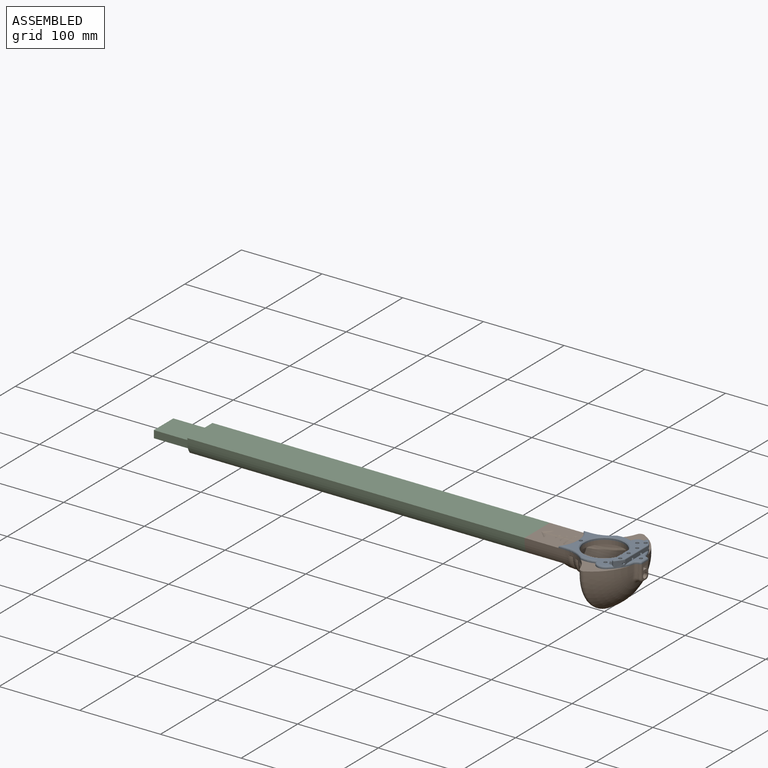
[diagram: assembled view]
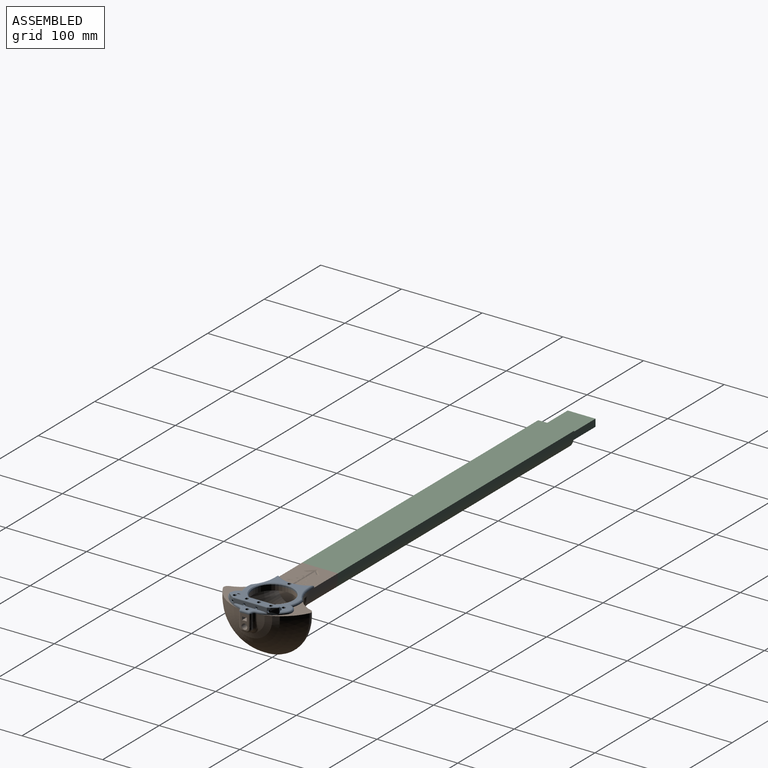
[diagram: assembled view, second angle]
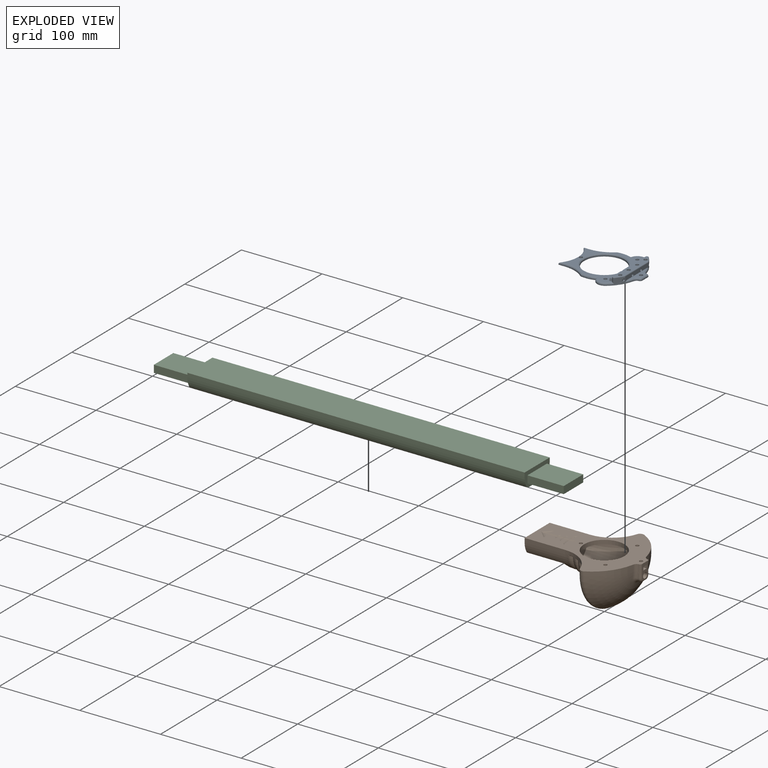
[diagram: exploded view]
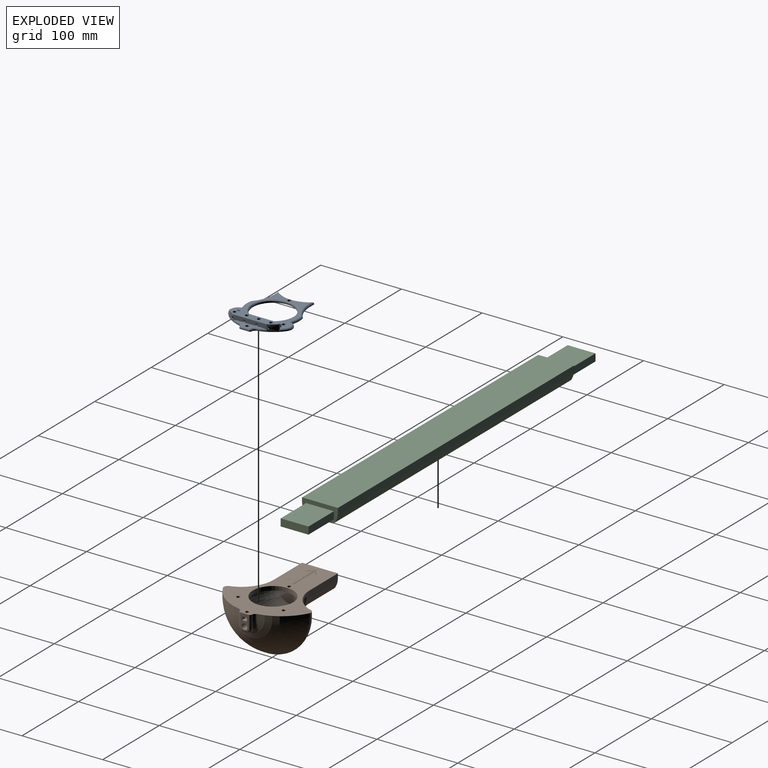
[diagram: exploded view, second angle]
ASSEMBLY  parts=3 mates=6
PART A: 123 faces, bbox 79.8x92.9x10.7 mm
  f0: plane 91.7x76.9mm, normal (0,0,-1), area 2674.4mm2, adj f10,f11,f12,f13,f14,f15,f16,f17
  f1: plane 31.9x8.03mm, normal (0,0,1), area 118.9mm2, adj f3,f5,f23,f48,f50,f52,f53,f54
  f2: torus R=43.5mm, axis (0,0,1), area 24.8mm2, adj f11,f27,f45,f115
  f3: torus R=43.5mm, axis (0,0,1), area 24.8mm2, adj f1,f11,f48,f68
  f4: torus R=43.5mm, axis (0,0,1), area 24.8mm2, adj f21,f27,f51,f116
  f5: torus R=43.5mm, axis (0,0,1), area 24.8mm2, adj f1,f21,f54,f68
  f6: plane 10.98x2.91mm, normal (0,0,1), area 31mm2, adj f33,f35,f55,f57,f59,f60
  f7: plane 10.98x2.91mm, normal (0,0,1), area 31mm2, adj f33,f35,f58,f60,f62,f63
  f8: plane 10.98x2.91mm, normal (0,0,1), area 31mm2, adj f33,f35,f61,f63,f65,f66
  f9: plane 4.45x2.91mm, normal (0,0,1), area 12.5mm2, adj f33,f34,f35,f64,f66
  f10: plane 10x1mm, normal (0,1,0), area 10mm2, adj f0,f28,f29,f52
  f11: cylinder r=45.5mm len=25.19mm, axis (0,0,-1), area 103.5mm2, adj f0,f2,f3,f12,f30,f68,f82,f115
  f12: cylinder r=10.25mm len=16.01mm, axis (0,0,-1), area 19.9mm2, adj f0,f11,f13,f45
  f13: cylinder r=33mm len=17.91mm, axis (0,0,-1), area 18.2mm2, adj f0,f12,f14,f43
  f14: cylinder r=40mm len=26.58mm, axis (0,0,-1), area 29.1mm2, adj f0,f13,f15,f41
  f15: plane 8x1mm, normal (-1,0,0), area 8mm2, adj f0,f14,f16,f42
  f16: cylinder r=34.24mm len=44.45mm, axis (0,0,-1), area 48.4mm2, adj f0,f15,f17,f44
  f17: plane 8x1mm, normal (1,0,0), area 8mm2, adj f0,f16,f18,f46
  f18: cylinder r=40mm len=26.58mm, axis (0,0,-1), area 29.1mm2, adj f0,f17,f19,f47
  f19: cylinder r=33mm len=17.91mm, axis (0,0,-1), area 18.2mm2, adj f0,f18,f20,f49
  f20: cylinder r=10.25mm len=16.01mm, axis (0,0,-1), area 19.9mm2, adj f0,f19,f21,f51
  f21: cylinder r=45.5mm len=25.19mm, axis (0,0,-1), area 103.5mm2, adj f0,f4,f5,f20,f31,f68,f76,f116
  f22: cylinder r=2.12mm len=4.25mm, axis (0,0,-1), area 40.1mm2, adj f0,f27
  f23: cylinder r=2.12mm len=4.25mm, axis (0,0,-1), area 40.1mm2, adj f0,f1
  f24: cylinder r=2.12mm len=4.25mm, axis (0,0,-1), area 40.1mm2, adj f0,f27,f44
  f25: cylinder r=2.12mm len=4.25mm, axis (0,0,-1), area 40.1mm2, adj f0,f27
  f26: cylinder r=25mm len=50mm, axis (0,0,-1), area 314.2mm2, adj f0,f67
  f27: plane 72.9x68.28mm, normal (0,0,1), area 1227.5mm2, adj f2,f4,f22,f24,f25,f32,f33,f34
  f28: cylinder r=2.5mm len=2.48mm, axis (0,0,1), area 3.6mm2, adj f0,f10,f30,f50
  f29: cylinder r=2.5mm len=2.48mm, axis (0,0,-1), area 3.6mm2, adj f0,f10,f31,f53
  f30: cylinder r=5mm len=4.22mm, axis (0,0,1), area 6mm2, adj f0,f11,f28,f48
  f31: cylinder r=5mm len=4.22mm, axis (0,0,1), area 6mm2, adj f0,f21,f29,f54
  f32: plane 3.94x3mm, normal (-0.98,0,0.17), area 10.4mm2, adj f27,f33,f35,f36
  f33: plane 58.98x3.04mm, normal (0,-0.98,0.17), area 167.4mm2, adj f6,f7,f8,f9,f27,f32,f34,f36
  f34: plane 3.94x3mm, normal (0.98,0,0.17), area 10.4mm2, adj f9,f27,f33,f35
  f35: plane 58.94x3mm, normal (0,0.98,0.17), area 141.1mm2, adj f6,f7,f8,f9,f27,f32,f34,f36
  f36: plane 4.45x2.91mm, normal (0,0,1), area 12.5mm2, adj f32,f33,f35,f56,f57
  f37: cylinder r=1.25mm len=2.4mm, axis (0,-0.98,0.17), area 6.5mm2, adj f33,f64,f65,f66
  f38: cylinder r=1.25mm len=2.4mm, axis (0,-0.98,0.17), area 6.5mm2, adj f33,f61,f62,f63
  f39: cylinder r=1.25mm len=2.4mm, axis (0,-0.98,0.17), area 6.5mm2, adj f33,f58,f59,f60
  f40: cylinder r=1.25mm len=2.4mm, axis (0,-0.98,0.17), area 6.5mm2, adj f33,f55,f56,f57
  f41: torus R=42mm, axis (0,0,1), area 92.1mm2, adj f14,f27,f42,f43
  f42: cylinder r=2mm len=8mm, axis (0,1,0), area 18.8mm2, adj f15,f27,f41,f44
  f43: torus R=31mm, axis (0,0,1), area 59.1mm2, adj f13,f27,f41,f45
  f44: torus R=36.24mm, axis (0,0,1), area 142.4mm2, adj f16,f24,f27,f42,f46
  f45: torus R=8.25mm, axis (0,0,1), area 62mm2, adj f2,f12,f27,f43
  f46: cylinder r=2mm len=8mm, axis (0,-1,0), area 18.8mm2, adj f17,f27,f44,f47
  f47: torus R=42mm, axis (0,0,1), area 92.1mm2, adj f18,f27,f46,f49
  f48: torus R=7mm, axis (0,0,1), area 21.5mm2, adj f1,f3,f30,f50
  f49: torus R=31mm, axis (0,0,1), area 59.1mm2, adj f19,f27,f47,f51
  f50: torus R=0.5mm, axis (0,0,1), area 8mm2, adj f1,f28,f48,f52
  f51: torus R=8.25mm, axis (0,0,1), area 62mm2, adj f4,f20,f27,f49
  f52: cylinder r=2mm len=10mm, axis (1,0,0), area 31.4mm2, adj f1,f10,f50,f53
  f53: torus R=0.5mm, axis (0,0,1), area 8mm2, adj f1,f29,f52,f54
  f54: torus R=7mm, axis (0,0,1), area 21.5mm2, adj f1,f5,f31,f53
  f55: bspline ~3.1x1.08mm, area 3.1mm2, adj f6,f33,f40,f57
  f56: bspline ~3.1x1.08mm, area 3.1mm2, adj f33,f36,f40,f57
  f57: bspline ~4.5x2.53mm, area 7.3mm2, adj f6,f35,f36,f40,f55,f56
  f58: bspline ~3.1x1.08mm, area 3.1mm2, adj f7,f33,f39,f60
  f59: bspline ~3.1x1.08mm, area 3.1mm2, adj f6,f33,f39,f60
  f60: bspline ~4.5x2.53mm, area 7.3mm2, adj f6,f7,f35,f39,f58,f59
  f61: bspline ~3.1x1.08mm, area 3.1mm2, adj f8,f33,f38,f63
  f62: bspline ~3.1x1.08mm, area 3.1mm2, adj f7,f33,f38,f63
  f63: bspline ~4.5x2.53mm, area 7.3mm2, adj f7,f8,f35,f38,f61,f62
  f64: bspline ~3.1x1.08mm, area 3.1mm2, adj f9,f33,f37,f66
  f65: bspline ~3.1x1.08mm, area 3.1mm2, adj f8,f33,f37,f66
  f66: bspline ~4.5x2.53mm, area 7.3mm2, adj f8,f9,f35,f37,f64,f65
  f67: cone r=25mm half-angle=45deg, axis (0,0,1), area 226.6mm2, adj f26,f27
  f68: plane 42.83x8.24mm, normal (0,1,0), area 197.7mm2, adj f1,f3,f5,f11,f21,f77,f79,f120
  f69: plane 57.89x5mm, normal (0,-1,0), area 261.2mm2, adj f35,f75,f78,f80,f81,f115,f116,f119
  f70: cylinder r=2.12mm len=5mm, axis (0,0,-1), area 55.9mm2, adj f74,f81,f82,f85,f86
  f71: cylinder r=2.12mm len=5mm, axis (0,0,-1), area 55.9mm2, adj f74,f79,f80,f93,f94
  f72: cylinder r=2.12mm len=5mm, axis (0,0,-1), area 55.9mm2, adj f74,f77,f78,f101,f102
  f73: cylinder r=2.12mm len=5mm, axis (0,0,-1), area 55.9mm2, adj f74,f75,f76,f109,f110
  f74: plane 59.89x8mm, normal (0,0,1), area 366mm2, adj f70,f71,f72,f73,f117,f118,f119,f120
  f75: cylinder r=1.5mm len=3.41mm, axis (0,-1,0), area 27.3mm2, adj f69,f73,f107,f109,f110
  f76: cylinder r=1.5mm len=3.39mm, axis (0,-1,0), area 17.2mm2, adj f21,f73,f108,f109,f110
  f77: cylinder r=1.5mm len=3.5mm, axis (0,-1,0), area 26.1mm2, adj f68,f72,f99,f101,f102
  f78: cylinder r=1.5mm len=3.41mm, axis (0,-1,0), area 27.3mm2, adj f69,f72,f100,f101,f102
  f79: cylinder r=1.5mm len=3.5mm, axis (0,-1,0), area 26.1mm2, adj f68,f71,f91,f93,f94
  f80: cylinder r=1.5mm len=3.41mm, axis (0,-1,0), area 27.3mm2, adj f69,f71,f92,f93,f94
  f81: cylinder r=1.5mm len=3.41mm, axis (0,-1,0), area 27.3mm2, adj f69,f70,f83,f85,f86
  f82: cylinder r=1.5mm len=3.39mm, axis (0,-1,0), area 17.2mm2, adj f11,f70,f84,f85,f86
  f83: plane 4x3.37mm, normal (0,1,0), area 11.4mm2, adj f0,f81,f85,f86,f89,f90
  f84: plane 4x3.37mm, normal (0,-1,0), area 11.4mm2, adj f0,f82,f85,f86,f87,f88
  f85: plane 5.84x1.95mm, normal (0,0,-1), area 4.9mm2, adj f70,f81,f82,f83,f84,f88,f89
  f86: plane 5.84x1.95mm, normal (0,0,-1), area 4.9mm2, adj f70,f81,f82,f83,f84,f87,f90
  f87: plane 4x2.92mm, normal (-0.87,-0.5,0), area 13.5mm2, adj f0,f84,f86,f90
  f88: plane 4x2.92mm, normal (0.87,-0.5,0), area 13.5mm2, adj f0,f84,f85,f89
  f89: plane 4x2.92mm, normal (0.87,0.5,0), area 13.5mm2, adj f0,f83,f85,f88
  f90: plane 4x2.92mm, normal (-0.87,0.5,0), area 13.5mm2, adj f0,f83,f86,f87
  f91: plane 4x3.37mm, normal (0,-1,0), area 11.4mm2, adj f0,f79,f93,f94,f95,f96
  f92: plane 4x3.37mm, normal (0,1,0), area 11.4mm2, adj f0,f80,f93,f94,f97,f98
  f93: plane 5.84x1.95mm, normal (0,0,-1), area 4.9mm2, adj f71,f79,f80,f91,f92,f96,f97
  f94: plane 5.84x1.95mm, normal (0,0,-1), area 4.9mm2, adj f71,f79,f80,f91,f92,f95,f98
  f95: plane 4x2.92mm, normal (-0.87,-0.5,0), area 13.5mm2, adj f0,f91,f94,f98
  f96: plane 4x2.92mm, normal (0.87,-0.5,0), area 13.5mm2, adj f0,f91,f93,f97
  f97: plane 4x2.92mm, normal (0.87,0.5,0), area 13.5mm2, adj f0,f92,f93,f96
  f98: plane 4x2.92mm, normal (-0.87,0.5,0), area 13.5mm2, adj f0,f92,f94,f95
  f99: plane 4x3.37mm, normal (0,-1,0), area 11.4mm2, adj f0,f77,f101,f102,f103,f104
  f100: plane 4x3.37mm, normal (0,1,0), area 11.4mm2, adj f0,f78,f101,f102,f105,f106
  f101: plane 5.84x1.95mm, normal (0,0,-1), area 4.9mm2, adj f72,f77,f78,f99,f100,f104,f105
  f102: plane 5.84x1.95mm, normal (0,0,-1), area 4.9mm2, adj f72,f77,f78,f99,f100,f103,f106
  f103: plane 4x2.92mm, normal (-0.87,-0.5,0), area 13.5mm2, adj f0,f99,f102,f106
  f104: plane 4x2.92mm, normal (0.87,-0.5,0), area 13.5mm2, adj f0,f99,f101,f105
  f105: plane 4x2.92mm, normal (0.87,0.5,0), area 13.5mm2, adj f0,f100,f101,f104
  f106: plane 4x2.92mm, normal (-0.87,0.5,0), area 13.5mm2, adj f0,f100,f102,f103
  f107: plane 4x3.37mm, normal (0,1,0), area 11.4mm2, adj f0,f75,f109,f110,f113,f114
  f108: plane 4x3.37mm, normal (0,-1,0), area 11.4mm2, adj f0,f76,f109,f110,f111,f112
  f109: plane 5.84x1.95mm, normal (0,0,-1), area 4.9mm2, adj f73,f75,f76,f107,f108,f112,f113
  f110: plane 5.84x1.95mm, normal (0,0,-1), area 4.9mm2, adj f73,f75,f76,f107,f108,f111,f114
  f111: plane 4x2.92mm, normal (-0.87,-0.5,0), area 13.5mm2, adj f0,f108,f110,f114
  f112: plane 4x2.92mm, normal (0.87,-0.5,0), area 13.5mm2, adj f0,f108,f109,f113
  f113: plane 4x2.92mm, normal (0.87,0.5,0), area 13.5mm2, adj f0,f107,f109,f112
  f114: plane 4x2.92mm, normal (-0.87,0.5,0), area 13.5mm2, adj f0,f107,f110,f111
  f115: cylinder r=2mm len=7mm, axis (0,0,-1), area 27.3mm2, adj f2,f11,f27,f69,f121
  f116: cylinder r=2mm len=7mm, axis (0,0,-1), area 27.3mm2, adj f4,f21,f27,f69,f117
  f117: torus R=1mm, axis (0,0,1), area 6.2mm2, adj f74,f116,f118,f119
  f118: torus R=44.5mm, axis (0,0,1), area 17.8mm2, adj f21,f74,f117,f120
  f119: cylinder r=1mm len=57.89mm, axis (-1,0,0), area 90.9mm2, adj f69,f74,f117,f121
  f120: cylinder r=1mm len=41.59mm, axis (1,0,0), area 64.9mm2, adj f68,f74,f118,f122
  f121: torus R=1mm, axis (0,0,1), area 6.2mm2, adj f74,f115,f119,f122
  f122: torus R=44.5mm, axis (0,0,1), area 17.8mm2, adj f11,f74,f120,f121
PART B: 161 faces, bbox 136.9x137.9x74.5 mm
  f0: plane 93.59x73.2mm, normal (0,0,1), area 2257.4mm2, adj f22,f26,f27,f28,f103,f111,f112,f113
  f1: cylinder r=2.12mm len=4.25mm, axis (0,0,-1), area 26.7mm2, adj f21,f125
  f2: cylinder r=2.12mm len=4.25mm, axis (0,0,-1), area 26.7mm2, adj f21,f118
  f3: cylinder r=2.12mm len=4.25mm, axis (0,0,-1), area 26.7mm2, adj f21,f117
  f4: cylinder r=3.5mm len=8.7mm, axis (0,1,0), area 191.2mm2, adj f74,f102
  f5: cylinder r=60mm len=41.99mm, axis (0,0,-1), area 272.6mm2, adj f6,f21,f41,f86
  f6: sphere r=60mm, area 5793.4mm2, adj f5,f24,f40,f81,f82,f83,f84,f85
  f7: plane 41.59x29.33mm, normal (0,0,1), area 901mm2, adj f9,f35,f42,f43,f71,f72,f73
  f8: plane 45x34.45mm, normal (0,0,-1), area 1491.3mm2, adj f9,f10,f11,f36,f71,f72,f73
  f9: plane 44.45x19.05mm, normal (0,-1,0), area 488.4mm2, adj f7,f8,f10,f11,f18,f19,f20,f21
  f10: plane 45x9.05mm, normal (-1,0,0), area 407.3mm2, adj f8,f9,f20,f36
  f11: plane 45x9.05mm, normal (1,0,0), area 407.3mm2, adj f8,f9,f20,f36
  f12: plane 3.28x1.87mm, normal (0,0,1), area 3.1mm2, adj f44,f47,f57,f60
  f13: plane 2.58x2.1mm, normal (0,0,1), area 2.9mm2, adj f31,f45,f48,f66,f69
  f14: plane 2.65x2.55mm, normal (0,0,1), area 3.1mm2, adj f33,f46,f49,f54,f63
  f15: plane 2.65x2.55mm, normal (0,0,1), area 3.1mm2, adj f33,f46,f52,f54,f63
  f16: plane 2.58x2.1mm, normal (0,0,1), area 2.9mm2, adj f31,f45,f51,f66,f69
  f17: plane 3.28x1.87mm, normal (0,0,1), area 3.1mm2, adj f44,f50,f57,f60
  f18: plane 50x5mm, normal (1,0,0), area 250mm2, adj f9,f21,f25,f37
  f19: plane 50x5mm, normal (-1,0,0), area 250mm2, adj f9,f21,f23,f38
  f20: plane 45x34.45mm, normal (0,0,1), area 1550.2mm2, adj f9,f10,f11,f36
  f21: plane 133.7x108.14mm, normal (0,0,-1), area 5604.5mm2, adj f1,f2,f3,f5,f9,f18,f19,f23
  f22: plane 34.45x17.23mm, normal (0,1,0), area 466.1mm2, adj f0,f28
  f23: cylinder r=40mm len=38.25mm, axis (0,0,-1), area 230.6mm2, adj f19,f21,f29,f30,f32,f34,f41,f47
  f24: cylinder r=60mm len=41.99mm, axis (0,0,-1), area 272.6mm2, adj f6,f21,f39,f80
  f25: cylinder r=40mm len=38.25mm, axis (0,0,-1), area 230.6mm2, adj f18,f21,f29,f30,f32,f34,f39,f50
  f26: cylinder r=25mm len=50mm, axis (0,0,-1), area 785.4mm2, adj f0,f21
  f27: sphere r=55mm, area 4172.4mm2, adj f0,f96,f97,f98,f99,f100,f101,f103
  f28: torus R=62.23mm, axis (0,1,0), area 4309.1mm2, adj f0,f22,f103
  f29: torus R=62.23mm, axis (0,1,0), area 296.4mm2, adj f23,f25,f35,f37,f38,f57
  f30: torus R=62.23mm, axis (0,1,0), area 125.9mm2, adj f23,f25,f60,f69
  f31: plane 50.56x25.28mm, normal (0,-1,0), area 35.2mm2, adj f13,f16,f45,f66
  f32: torus R=62.23mm, axis (0,1,0), area 137.1mm2, adj f23,f25,f63,f66
  f33: plane 61.17x30.59mm, normal (0,-1,0), area 67.2mm2, adj f14,f15,f46,f54
  f34: torus R=62.23mm, axis (0,1,0), area 2544.8mm2, adj f23,f25,f40,f54
  f35: revolved ~37.82x21.22mm, area 645.9mm2, adj f7,f29,f42,f43
  f36: plane 34.45x9.05mm, normal (0,-1,0), area 311.8mm2, adj f8,f10,f11,f20
  f37: cylinder r=22.23mm len=50mm, axis (0,1,0), area 614.7mm2, adj f9,f18,f29,f42
  f38: cylinder r=22.23mm len=50mm, axis (0,1,0), area 614.7mm2, adj f9,f19,f29,f43
  f39: cylinder r=5mm len=7.04mm, axis (0,0,1), area 43.6mm2, adj f21,f24,f25,f40
  f40: torus R=49.07mm, axis (0,1,0), area 1453.9mm2, adj f6,f34,f39,f41
  f41: cylinder r=5mm len=7.04mm, axis (0,0,1), area 43.6mm2, adj f5,f21,f23,f40
  f42: cylinder r=5mm len=50mm, axis (0,1,0), area 233mm2, adj f7,f9,f35,f37
  f43: cylinder r=5mm len=50mm, axis (0,1,0), area 233mm2, adj f7,f9,f35,f38
  f44: torus R=21.71mm, axis (0,-1,0), area 138.3mm2, adj f12,f17,f57,f60
  f45: torus R=24.83mm, axis (0,-1,0), area 178.2mm2, adj f13,f16,f31,f69
  f46: torus R=29.88mm, axis (0,-1,0), area 182.6mm2, adj f14,f15,f33,f63
  f47: torus R=41mm, axis (0,0,-1), area 9.4mm2, adj f12,f23,f58,f61
  f48: torus R=41mm, axis (0,0,-1), area 7.8mm2, adj f13,f23,f67,f70
  f49: torus R=41mm, axis (0,0,-1), area 9.5mm2, adj f14,f23,f55,f64
  f50: torus R=41mm, axis (0,0,-1), area 9.4mm2, adj f17,f25,f56,f59
  f51: torus R=41mm, axis (0,0,-1), area 7.8mm2, adj f16,f25,f65,f68
  f52: torus R=41mm, axis (0,0,-1), area 9.5mm2, adj f15,f25,f53,f62
  f53: cylinder r=5mm len=2.67mm, axis (0,0,-1), area 1.5mm2, adj f25,f52,f54
  f54: torus R=30.59mm, axis (0,-1,0), area 397.3mm2, adj f14,f15,f33,f34,f53,f55
  f55: cylinder r=5mm len=2.67mm, axis (0,0,-1), area 1.5mm2, adj f23,f49,f54
  f56: bspline ~4.13x3.99mm, area 1.6mm2, adj f25,f50,f57
  f57: torus R=17.48mm, axis (0,-1,0), area 309mm2, adj f12,f17,f29,f44,f56,f58
  f58: bspline ~4.13x2.5mm, area 1.6mm2, adj f23,f47,f57
  f59: bspline ~3.49x2.85mm, area 1.4mm2, adj f25,f50,f60
  f60: torus R=20.46mm, axis (0,-1,0), area 289.2mm2, adj f12,f17,f30,f44,f59,f61
  f61: bspline ~3.49x2.85mm, area 1.4mm2, adj f23,f47,f60
  f62: bspline ~4.2x3.95mm, area 1.4mm2, adj f25,f52,f63
  f63: torus R=25.32mm, axis (0,-1,0), area 365.2mm2, adj f14,f15,f32,f46,f62,f64
  f64: bspline ~4.2x3.95mm, area 1.4mm2, adj f23,f49,f63
  f65: cylinder r=3mm len=1.93mm, axis (0,0,-1), area 1.2mm2, adj f25,f51,f66
  f66: torus R=25.28mm, axis (0,-1,0), area 260.1mm2, adj f13,f16,f31,f32,f65,f67
  f67: cylinder r=3mm len=1.93mm, axis (0,0,-1), area 1.2mm2, adj f23,f48,f66
  f68: bspline ~3.67x3.28mm, area 1.2mm2, adj f25,f51,f69
  f69: torus R=21.99mm, axis (0,-1,0), area 266.8mm2, adj f13,f16,f30,f45,f68,f70
  f70: bspline ~5.87x3.28mm, area 1.2mm2, adj f23,f48,f69
  f71: cylinder r=2.5mm len=5mm, axis (0,0,1), area 78.5mm2, adj f7,f8
  f72: cylinder r=2.5mm len=5mm, axis (0,0,1), area 78.5mm2, adj f7,f8
  f73: cylinder r=2.5mm len=5mm, axis (0,0,1), area 78.5mm2, adj f7,f8
  f74: plane 18.5x10.08mm, normal (0,1,0), area 121.4mm2, adj f4,f21,f87,f88,f89,f90,f91,f92
  f75: plane 1.01x0.17mm, normal (1,0,0), area 0.1mm2, adj f79,f81,f95
  f76: plane 1.01x0.17mm, normal (-1,0,0), area 0.1mm2, adj f78,f85,f89
  f77: plane 5x1.54mm, normal (0,0,1), area 7.5mm2, adj f78,f79,f83,f91
  f78: cylinder r=5mm len=5mm, axis (0,-1,0), area 9mm2, adj f76,f77,f84,f90
  f79: cylinder r=5mm len=5mm, axis (0,1,0), area 9mm2, adj f75,f77,f82,f93
  f80: cylinder r=5mm len=5mm, axis (0,0,-1), area 31.8mm2, adj f21,f24,f81,f92
  f81: torus R=63.79mm, axis (1,0,0), area 70mm2, adj f6,f75,f80,f82,f94
  f82: bspline ~11.28x9.5mm, area 67.6mm2, adj f6,f79,f81,f83
  f83: torus R=61.51mm, axis (0,0,-1), area 29.7mm2, adj f6,f77,f82,f84
  f84: bspline ~11.28x10.29mm, area 67.6mm2, adj f6,f78,f83,f85
  f85: torus R=63.79mm, axis (1,0,0), area 70mm2, adj f6,f76,f84,f86,f88
  f86: cylinder r=5mm len=5mm, axis (0,0,-1), area 31.8mm2, adj f5,f21,f85,f87
  f87: cylinder r=2.5mm len=5mm, axis (0,0,-1), area 18.3mm2, adj f21,f74,f86,f88
  f88: bspline ~17.54x2.87mm, area 37.5mm2, adj f74,f85,f87,f89
  f89: cylinder r=2.5mm len=2.5mm, axis (0,0,-1), area 4mm2, adj f74,f76,f88,f90
  f90: torus R=2.5mm, axis (0,-1,0), area 25.2mm2, adj f74,f78,f89,f91
  f91: cylinder r=2.5mm len=5mm, axis (-1,0,0), area 19.6mm2, adj f74,f77,f90,f93
  f92: cylinder r=2.5mm len=5mm, axis (0,0,-1), area 18.3mm2, adj f21,f74,f80,f94
  f93: torus R=2.5mm, axis (0,-1,0), area 25.2mm2, adj f74,f79,f91,f95
  f94: bspline ~17.54x2.87mm, area 37.5mm2, adj f74,f81,f92,f95
  f95: cylinder r=2.5mm len=2.5mm, axis (0,0,1), area 4mm2, adj f74,f75,f93,f94
  f96: plane 7.9x5.47mm, normal (-0.5,0,0.87), area 14mm2, adj f27,f97,f101,f102
  f97: plane 7.6x4.63mm, normal (-1,0,0), area 19.9mm2, adj f27,f96,f98,f102
  f98: plane 6.57x5.1mm, normal (-0.5,0,-0.87), area 25.9mm2, adj f27,f97,f99,f102
  f99: plane 6.57x5.1mm, normal (0.5,0,-0.87), area 25.9mm2, adj f27,f98,f100,f102
  f100: plane 7.6x4.63mm, normal (1,0,0), area 19.9mm2, adj f27,f99,f101,f102
  f101: plane 7.9x5.47mm, normal (0.5,0,0.87), area 14mm2, adj f27,f96,f100,f102
  f102: plane 13.28x11.5mm, normal (0,-1,0), area 76mm2, adj f4,f96,f97,f98,f99,f100,f101
  f103: torus R=41.8mm, axis (0,1,0), area 1251.2mm2, adj f0,f27,f28
  f104: cylinder r=2.12mm len=4.25mm, axis (0,0,-1), area 53.4mm2, adj f21,f107
  f105: plane 6.68x4mm, normal (1,0,0), area 26.7mm2, adj f74,f107,f108,f110
  f106: plane 6.68x4mm, normal (-1,0,0), area 26.7mm2, adj f74,f107,f109,f110
  f107: plane 8.36x5.83mm, normal (0,0,1), area 29.6mm2, adj f74,f104,f105,f106,f108,f109
  f108: plane 4x2.91mm, normal (0.5,0.87,0), area 13.5mm2, adj f105,f107,f109,f110
  f109: plane 4x2.91mm, normal (-0.5,0.87,0), area 13.5mm2, adj f106,f107,f108,f110
  f110: plane 8.36x5.83mm, normal (0,0,-1), area 43.8mm2, adj f74,f105,f106,f108,f109
  f111: plane 3x2.91mm, normal (-0.5,0.87,0), area 10.1mm2, adj f0,f112,f116,f117
  f112: plane 3.36x3mm, normal (-1,0,0), area 10.1mm2, adj f0,f111,f113,f117
  f113: plane 3x2.91mm, normal (-0.5,-0.87,0), area 10.1mm2, adj f0,f112,f114,f117
  f114: plane 3x2.91mm, normal (0.5,-0.87,0), area 10.1mm2, adj f0,f113,f115,f117
  f115: plane 3.36x3mm, normal (1,0,0), area 10.1mm2, adj f0,f114,f116,f117
  f116: plane 3x2.91mm, normal (0.5,0.87,0), area 10.1mm2, adj f0,f111,f115,f117
  f117: plane 6.73x5.83mm, normal (0,0,1), area 15.2mm2, adj f3,f111,f112,f113,f114,f115,f116
  f118: plane 6.73x5.83mm, normal (0,0,1), area 15.2mm2, adj f2,f119,f120,f121,f122,f123,f124
  f119: plane 3x2.91mm, normal (0.5,-0.87,0), area 10.1mm2, adj f0,f118,f120,f124
  f120: plane 3.36x3mm, normal (1,0,0), area 10.1mm2, adj f0,f118,f119,f121
  f121: plane 3x2.91mm, normal (0.5,0.87,0), area 10.1mm2, adj f0,f118,f120,f122
  f122: plane 3x2.91mm, normal (-0.5,0.87,0), area 10.1mm2, adj f0,f118,f121,f123
  f123: plane 3.36x3mm, normal (-1,0,0), area 10.1mm2, adj f0,f118,f122,f124
  f124: plane 3x2.91mm, normal (-0.5,-0.87,0), area 10.1mm2, adj f0,f118,f119,f123
  f125: plane 6.74x5.84mm, normal (0,0,1), area 15.3mm2, adj f1,f126,f127,f128,f129,f130,f131
  f126: plane 3x2.92mm, normal (0.87,0.5,0), area 10.1mm2, adj f0,f125,f127,f131
  f127: plane 3.37x3mm, normal (0,1,0), area 10.1mm2, adj f0,f125,f126,f128
  f128: plane 3x2.92mm, normal (-0.87,0.5,0), area 10.1mm2, adj f0,f125,f127,f129
  f129: plane 3x2.92mm, normal (-0.87,-0.5,0), area 10.1mm2, adj f0,f125,f128,f130
  f130: plane 3.37x3mm, normal (0,-1,0), area 10.1mm2, adj f0,f125,f129,f131
  f131: plane 3x2.92mm, normal (0.87,-0.5,0), area 10.1mm2, adj f0,f125,f126,f130
  f132: plane 7.88x6.53mm, normal (0.35,-0.35,-0.87), area 13.6mm2, adj f21,f133,f134,f155,f159,f160
  f133: plane 0.35x0.25mm, normal (-0.5,0,-0.87), area 0mm2, adj f132,f134,f136
  f134: plane 10x10mm, normal (0.35,0.35,-0.87), area 20mm2, adj f21,f132,f133,f135,f136,f160
  f135: plane 4.24x1.5mm, normal (0,-0.5,-0.87), area 3.7mm2, adj f21,f134,f136
  f136: plane 7.63x6.38mm, normal (-0.35,-0.35,-0.87), area 13.5mm2, adj f21,f133,f134,f135,f146
  f137: cone r=59mm half-angle=60deg, axis (0,0,-1), area 1.8mm2, adj f21,f138,f139,f146
  f138: plane 2.92x2.2mm, normal (0.33,0.38,-0.87), area 1.9mm2, adj f21,f137,f139
  f139: cone r=57mm half-angle=60deg, axis (0,0,1), area 3.2mm2, adj f21,f137,f138,f146
  f140: cone r=52mm half-angle=60deg, axis (0,0,-1), area 4.7mm2, adj f21,f141,f142,f146
  f141: plane 2.97x2.36mm, normal (0.34,0.37,-0.87), area 1.9mm2, adj f21,f140,f142
  f142: cone r=50mm half-angle=60deg, axis (0,0,1), area 6.1mm2, adj f21,f140,f141,f146
  f143: cone r=45mm half-angle=60deg, axis (0,0,-1), area 10.5mm2, adj f21,f144,f145,f146
  f144: plane 3.08x2.78mm, normal (0.37,0.34,-0.87), area 2.1mm2, adj f21,f143,f145
  f145: cone r=43mm half-angle=60deg, axis (0,0,1), area 12mm2, adj f21,f143,f144,f146
  f146: plane 40.89x1.26mm, normal (0.5,0,-0.87), area 50mm2, adj f21,f136,f137,f139,f140,f142,f143,f145
  f147: plane 4.67x1.25mm, normal (-0.43,-0.25,-0.87), area 1.8mm2, adj f21,f146,f148
  f148: plane 4.67x1.25mm, normal (0.43,-0.25,-0.87), area 1.8mm2, adj f21,f147,f155
  f149: cone r=43mm half-angle=60deg, axis (0,0,1), area 12mm2, adj f21,f150,f151,f155
  f150: plane 3.08x2.78mm, normal (-0.37,0.34,-0.87), area 2.1mm2, adj f21,f149,f151
  f151: cone r=45mm half-angle=60deg, axis (0,0,-1), area 10.5mm2, adj f21,f149,f150,f155
  f152: cone r=50mm half-angle=60deg, axis (0,0,1), area 6.1mm2, adj f21,f153,f154,f155
  f153: plane 2.97x2.36mm, normal (-0.34,0.37,-0.87), area 1.9mm2, adj f21,f152,f154
  f154: cone r=52mm half-angle=60deg, axis (0,0,-1), area 4.7mm2, adj f21,f152,f153,f155
  f155: plane 40.89x1.26mm, normal (-0.5,0,-0.87), area 50mm2, adj f21,f132,f146,f148,f149,f151,f152,f154
  f156: cone r=57mm half-angle=60deg, axis (0,0,1), area 3.2mm2, adj f21,f155,f157,f158
  f157: plane 2.92x2.2mm, normal (-0.33,0.38,-0.87), area 1.9mm2, adj f21,f156,f158
  f158: cone r=59mm half-angle=60deg, axis (0,0,-1), area 1.8mm2, adj f21,f155,f156,f157
  f159: plane 4.24x1.5mm, normal (0,-0.5,-0.87), area 3.7mm2, adj f21,f132,f160
  f160: plane 10x10mm, normal (-0.35,0.35,-0.87), area 20.1mm2, adj f21,f132,f134,f159
PART C: 20 faces, bbox 508x44.5x19.1 mm
  f0: cylinder r=22.23mm len=418mm, axis (1,0,0), area 5139.1mm2, adj f1,f5,f7,f14
  f1: cylinder r=5mm len=418mm, axis (1,0,0), area 2126.8mm2, adj f0,f4,f7,f14
  f2: cylinder r=22.23mm len=418mm, axis (1,0,0), area 5139.1mm2, adj f3,f6,f7,f14
  f3: cylinder r=5mm len=418mm, axis (1,0,0), area 2126.8mm2, adj f2,f4,f7,f14
  f4: plane 418x29.31mm, normal (0,0,-1), area 12252.4mm2, adj f1,f3,f7,f14
  f5: plane 418x5mm, normal (0,1,0), area 2090mm2, adj f0,f7,f8,f14
  f6: plane 418x5mm, normal (0,-1,0), area 2090mm2, adj f2,f7,f8,f14
  f7: plane 44.45x19.05mm, normal (1,0,0), area 488.4mm2, adj f0,f1,f2,f3,f4,f5,f6,f8
  f8: plane 418x44.45mm, normal (0,0,1), area 18580.1mm2, adj f5,f6,f7,f14
  f9: plane 45x34.45mm, normal (0,0,1), area 1550.3mm2, adj f7,f10,f12,f13
  f10: plane 45x9.05mm, normal (0,1,0), area 407.3mm2, adj f7,f9,f11,f13
  f11: plane 45x34.45mm, normal (0,0,-1), area 1550.3mm2, adj f7,f10,f12,f13
  f12: plane 45x9.05mm, normal (0,-1,0), area 407.3mm2, adj f7,f9,f11,f13
  f13: plane 34.45x9.05mm, normal (1,0,0), area 311.8mm2, adj f9,f10,f11,f12
  f14: plane 44.45x19.05mm, normal (-1,0,0), area 488.4mm2, adj f0,f1,f2,f3,f4,f5,f6,f8
  f15: plane 45x34.45mm, normal (0,0,1), area 1550.3mm2, adj f14,f16,f18,f19
  f16: plane 45x9.05mm, normal (0,-1,0), area 407.3mm2, adj f14,f15,f17,f19
  f17: plane 45x34.45mm, normal (0,0,-1), area 1550.3mm2, adj f14,f16,f18,f19
  f18: plane 45x9.05mm, normal (0,1,0), area 407.3mm2, adj f14,f15,f17,f19
  f19: plane 34.45x9.05mm, normal (-1,0,0), area 311.8mm2, adj f15,f16,f17,f18
PLACE A rot(axis=(0,0,-1),90deg) t=(-0.53,0.69,31.04)mm
PLACE B rot(axis=(-0.71,-0.71,0),180deg) t=(-33.73,0.69,21.52)mm fixed
PLACE C rot(axis=(0,0,-1),0deg) t=(-292.73,0.69,21.52)mm
MATE planar C.f12 <-> B.f11  axis (0,-1,0) through (-61.23,-16.53,21.52)mm
MATE cylindrical A.f26 <-> B.f26  axis (0,0,-1) through (-0.53,0.69,32.04)mm
MATE planar B.f36 <-> C.f13  axis (-1,0,0) through (-38.73,0.69,21.52)mm
MATE planar B.f21 <-> A.f0  axis (0,0,1) through (-12.62,0.69,31.04)mm
MATE planar B.f74 <-> A.f10  axis (1,0,0) through (49.97,0.69,23.1)mm
MATE planar B.f21 <-> C.f8  axis (0,0,1) through (-83.73,0.69,31.04)mm
